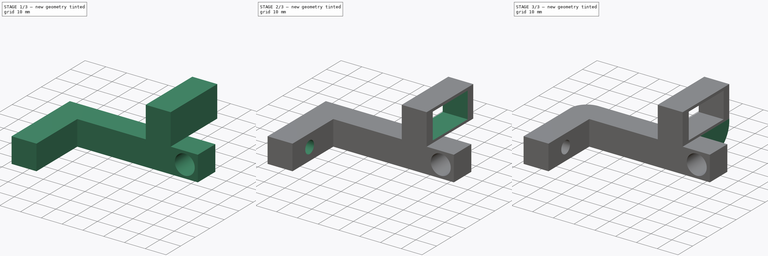
[diagram: build sequence overview — one tinted view per stage of 3, left to right]
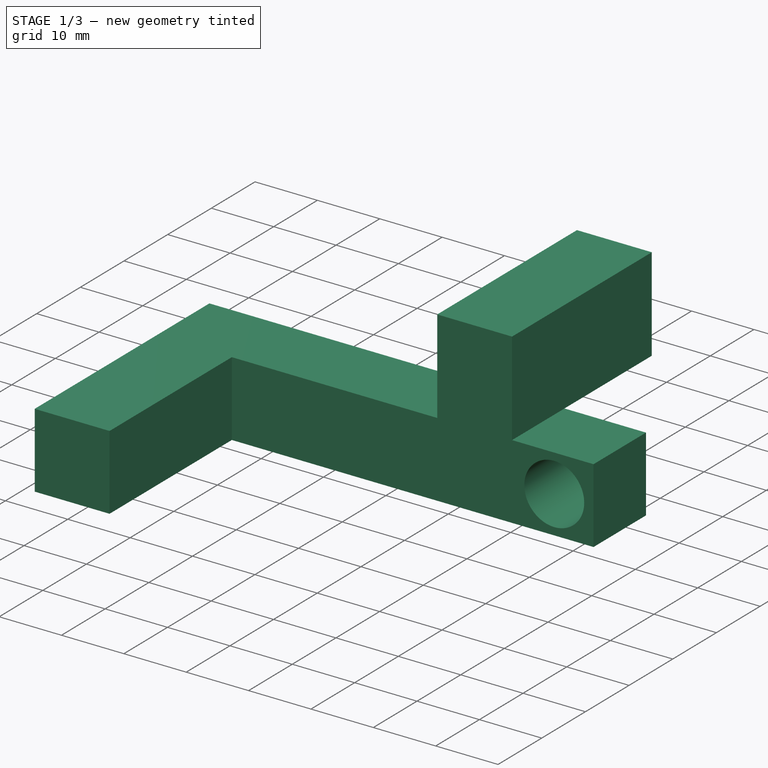
[diagram: stage 1 of 3 — iso view after this stage's code; geometry added in this stage tinted green]
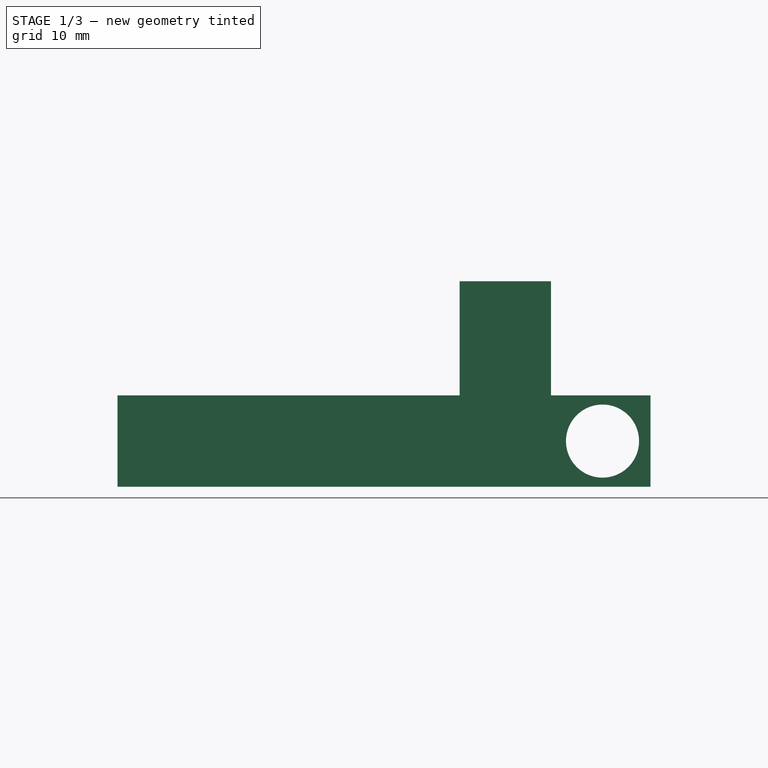
[diagram: stage 1 of 3 — front view after this stage's code; geometry added in this stage tinted green]
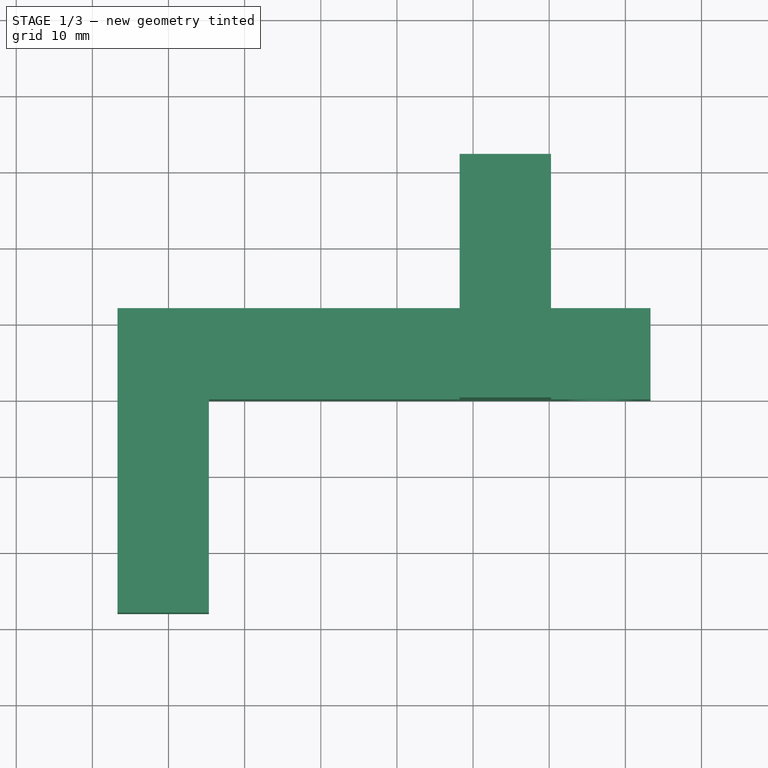
[diagram: stage 1 of 3 — top view after this stage's code; geometry added in this stage tinted green]
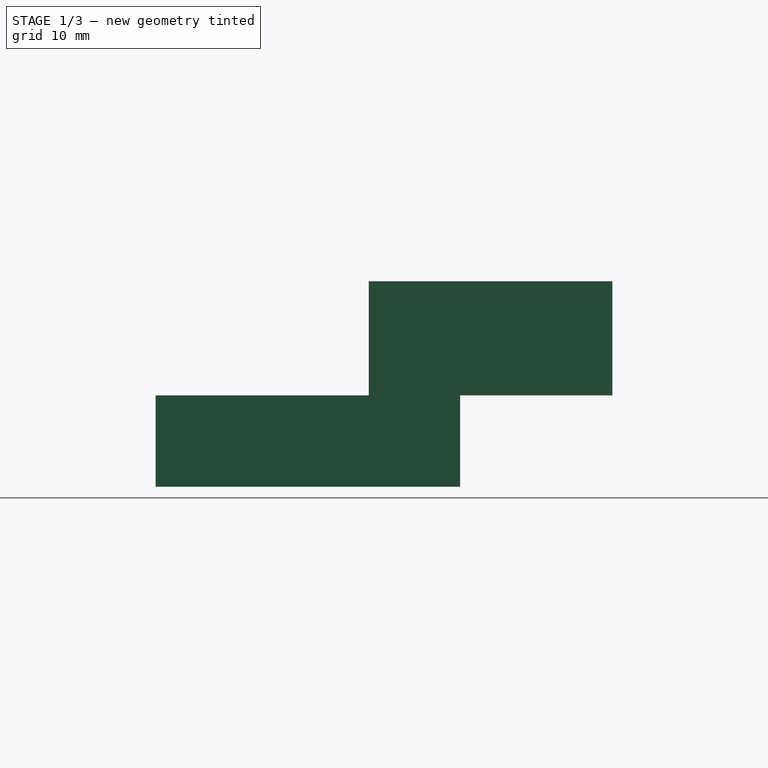
[diagram: stage 1 of 3 — right view after this stage's code; geometry added in this stage tinted green]
FCSTD DOCUMENT  (FreeCAD 0.18R4 (GitTag))
Label: keyboardSWPart3
License: All rights reserved
LicenseURL: http://en.wikipedia.org/wiki/All_rights_reserved
objects: Sketcher::SketchObject×6, PartDesign::Pad×3, PartDesign::Pocket×3, PartDesign::Fillet×2, PartDesign::Body×1
note: 21 computed .brp shape members not serialized (recipe doc carries the construction recipe); baked Part::Feature solids carry a one-line shape summary decoded from their .brp

FEATURE [Sketcher::SketchObject] Sketch
  MapMode = 5
  Support = -> [XY_Plane]
  sketch-geometry (7):
    g0: LineSegment StartX=0 StartY=0 StartZ=0 EndX=23.3008 EndY=0 EndZ=0
    g1: LineSegment StartX=23.3008 StartY=0 StartZ=0 EndX=23.3008 EndY=12 EndZ=0
    g2: LineSegment StartX=23.3008 StartY=12 StartZ=0 EndX=-46.6992 EndY=12 EndZ=0
    g3: LineSegment StartX=-46.6992 StartY=12 StartZ=0 EndX=-46.6992 EndY=-28 EndZ=0
    g4: LineSegment StartX=-46.6992 StartY=-28 StartZ=0 EndX=-34.6992 EndY=-28 EndZ=0
    g5: LineSegment StartX=-34.6992 StartY=-28 StartZ=0 EndX=-34.6992 EndY=0 EndZ=0
    g6: LineSegment StartX=-34.6992 StartY=0 StartZ=0 EndX=0 EndY=0 EndZ=0
  constraints (19):
    c: Coincident(g-1,g0)
    c: Horizontal(g0)
    c: Coincident(g0,g1)
    c: Vertical(g1)
    c: Coincident(g1,g2)
    c: Horizontal(g2)
    c: Coincident(g2,g3)
    c: Vertical(g3)
    c: Coincident(g3,g4)
    c: Horizontal(g4)
    c: Coincident(g4,g5)
    c: PointOnObject(g5,g-1)
    c: Vertical(g5)
    c: Coincident(g5,g6)
    c: Coincident(g6,g0)
    c: DistanceY(g1,g1) = 12
    c: DistanceX(g4,g4) = 12
    c: DistanceX(g2,g2) = 70
    c: DistanceY(g3,g3) = 40
FEATURE [PartDesign::Pad] Pad
  Length = 12
  Length2 = 100
  Profile = -> Sketch
  Type = 0
FEATURE [Sketcher::SketchObject] Sketch001
  MapMode = 5
  Placement = pos=(0,12,0) rot=(0,0.707107,0.707107;3.14159rad)
  Support = -> [Pad]
  sketch-geometry (1):
    g0: Circle CenterX=-17 CenterY=6 CenterZ=0 NormalX=0 NormalY=0 NormalZ=1 AngleXU=0 Radius=4.8
  constraints (3):
    c: Radius(g0) = 4.8
    c: DistanceY(g-1,g0) = 6
    c: DistanceX(g0,g-1) = 17
FEATURE [PartDesign::Pocket] Pocket
  BaseFeature = -> Pad
  Length = 13
  Length2 = 100
  Profile = -> Sketch001
  Type = 0
FEATURE [Sketcher::SketchObject] Sketch006
  MapMode = 5
  Placement = pos=(0,0,12) rot=(0,0,1;0rad)
  sketch-geometry (4):
    g0: LineSegment StartX=10.2329 StartY=0 StartZ=0 EndX=-1.76709 EndY=0 EndZ=0
    g1: LineSegment StartX=-1.76709 StartY=0 StartZ=0 EndX=-1.76709 EndY=32 EndZ=0
    g2: LineSegment StartX=-1.76709 StartY=32 StartZ=0 EndX=10.2329 EndY=32 EndZ=0
    g3: LineSegment StartX=10.2329 StartY=32 StartZ=0 EndX=10.2329 EndY=0 EndZ=0
  constraints (11):
    c: Coincident(g0,g1)
    c: Coincident(g1,g2)
    c: Coincident(g2,g3)
    c: Coincident(g3,g0)
    c: Horizontal(g0)
    c: Horizontal(g2)
    c: Vertical(g1)
    c: Vertical(g3)
    c: PointOnObject(g0,g-1)
    c: DistanceY(g3,g3) = 32
    c: DistanceX(g2,g2) = 12
FEATURE [PartDesign::Pad] Pad001
  BaseFeature = -> Pocket
  Length = 15
  Length2 = 100
  Profile = -> Sketch006
  Type = 0
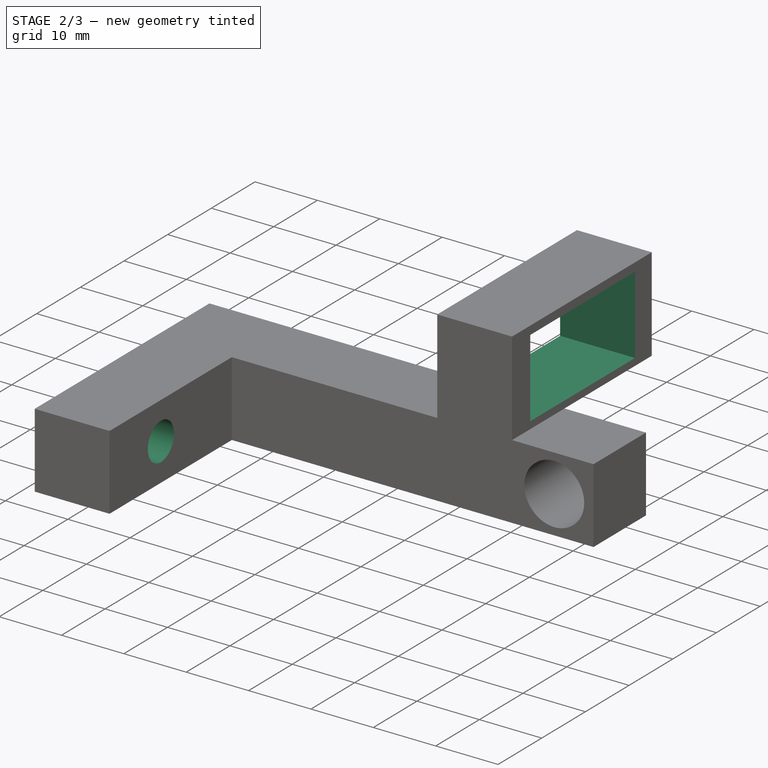
[diagram: stage 2 of 3 — iso view after this stage's code; geometry added in this stage tinted green]
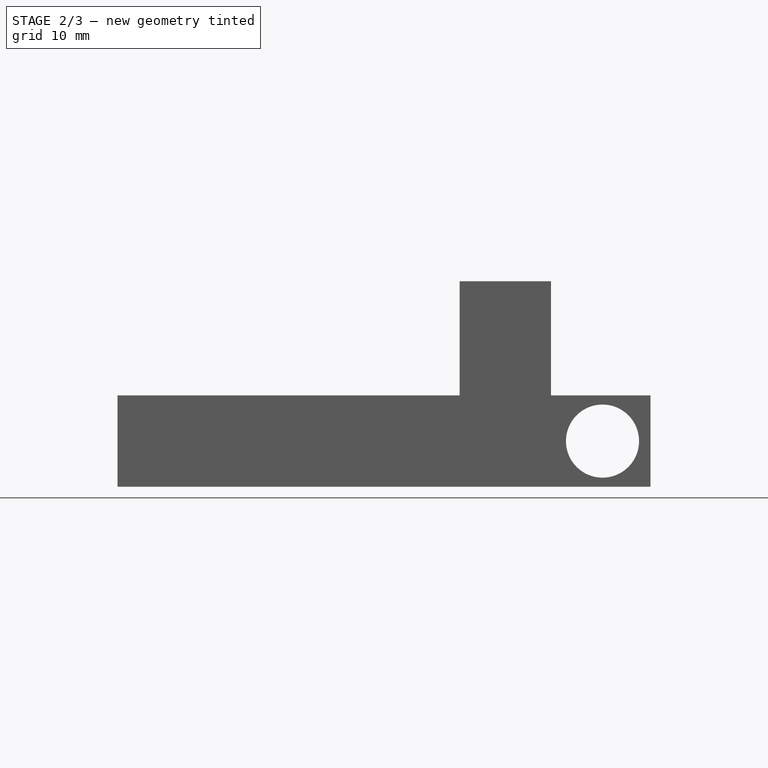
[diagram: stage 2 of 3 — front view after this stage's code; geometry added in this stage tinted green]
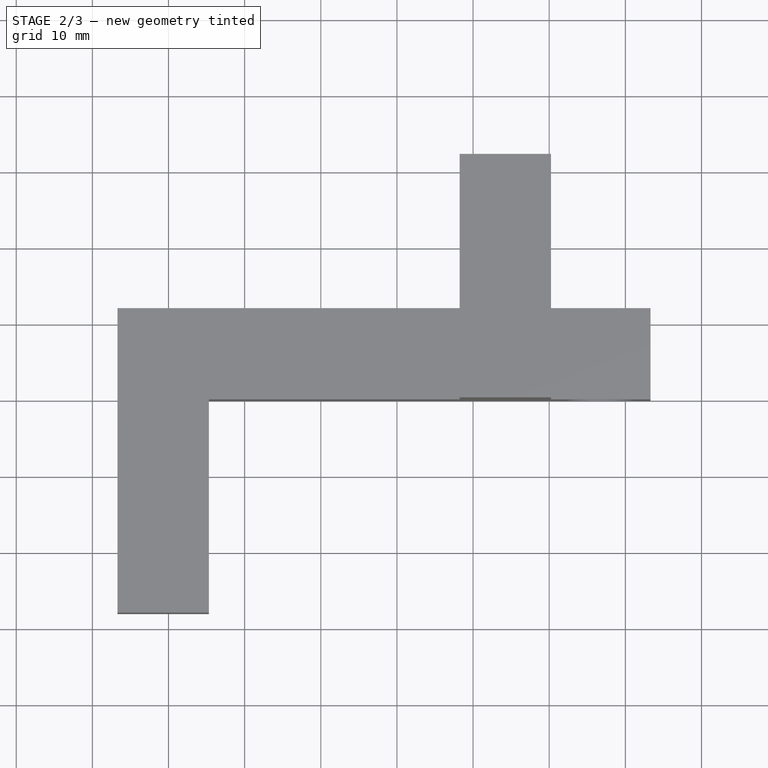
[diagram: stage 2 of 3 — top view after this stage's code; geometry added in this stage tinted green]
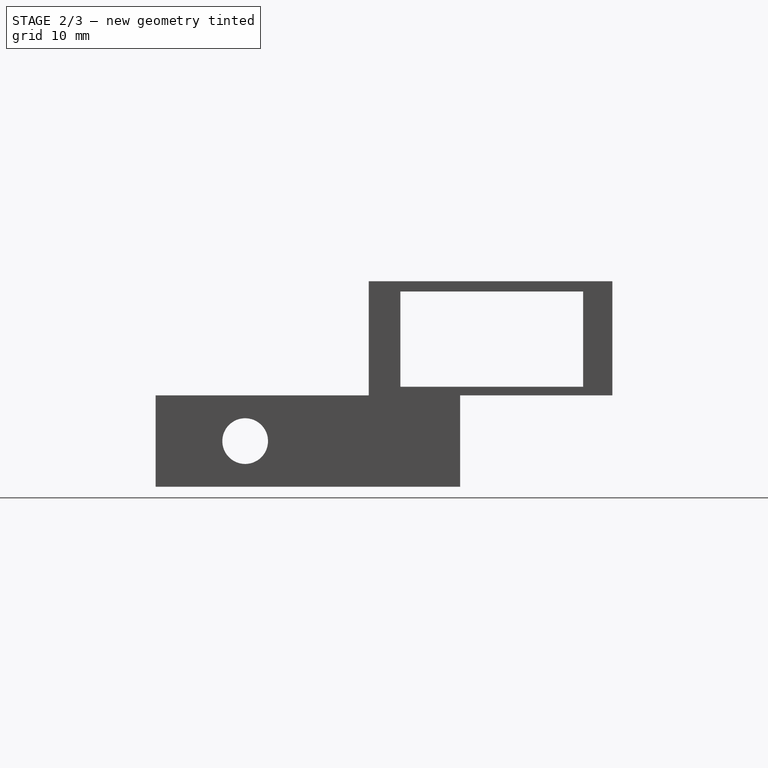
[diagram: stage 2 of 3 — right view after this stage's code; geometry added in this stage tinted green]
FEATURE [Sketcher::SketchObject] Sketch007
  MapMode = 5
  Placement = pos=(10.2329,0,0) rot=(0.57735,0.57735,0.57735;2.0944rad)
  Support = -> [Pad001]
  sketch-geometry (4):
    g0: LineSegment StartX=4.15885 StartY=25.6458 StartZ=0 EndX=28.1588 EndY=25.6458 EndZ=0
    g1: LineSegment StartX=28.1588 StartY=25.6458 StartZ=0 EndX=28.1588 EndY=13.1458 EndZ=0
    g2: LineSegment StartX=28.1588 StartY=13.1458 StartZ=0 EndX=4.15885 EndY=13.1458 EndZ=0
    g3: LineSegment StartX=4.15885 StartY=13.1458 StartZ=0 EndX=4.15885 EndY=25.6458 EndZ=0
  constraints (10):
    c: Coincident(g0,g1)
    c: Coincident(g1,g2)
    c: Coincident(g2,g3)
    c: Coincident(g3,g0)
    c: Horizontal(g0)
    c: Horizontal(g2)
    c: Vertical(g1)
    c: Vertical(g3)
    c: DistanceY(g1,g1) = 12.5
    c: DistanceX(g0,g0) = 24
FEATURE [PartDesign::Pocket] Pocket004
  BaseFeature = -> Pad001
  Length = 13
  Length2 = 100
  Profile = -> Sketch007
  Type = 0
FEATURE [Sketcher::SketchObject] Sketch008
  MapMode = 5
  Placement = pos=(-46.6992,0,0) rot=(0.57735,-0.57735,-0.57735;2.0944rad)
  Support = -> [Pocket004]
  sketch-geometry (1):
    g0: Circle CenterX=16.2342 CenterY=6 CenterZ=0 NormalX=0 NormalY=0 NormalZ=1 AngleXU=0 Radius=3
  constraints (2):
    c: Radius(g0) = 3
    c: DistanceY(g-1,g0) = 6
FEATURE [PartDesign::Pocket] Pocket005
  BaseFeature = -> Pocket004
  Length = 13
  Length2 = 100
  Profile = -> Sketch008
  Type = 0
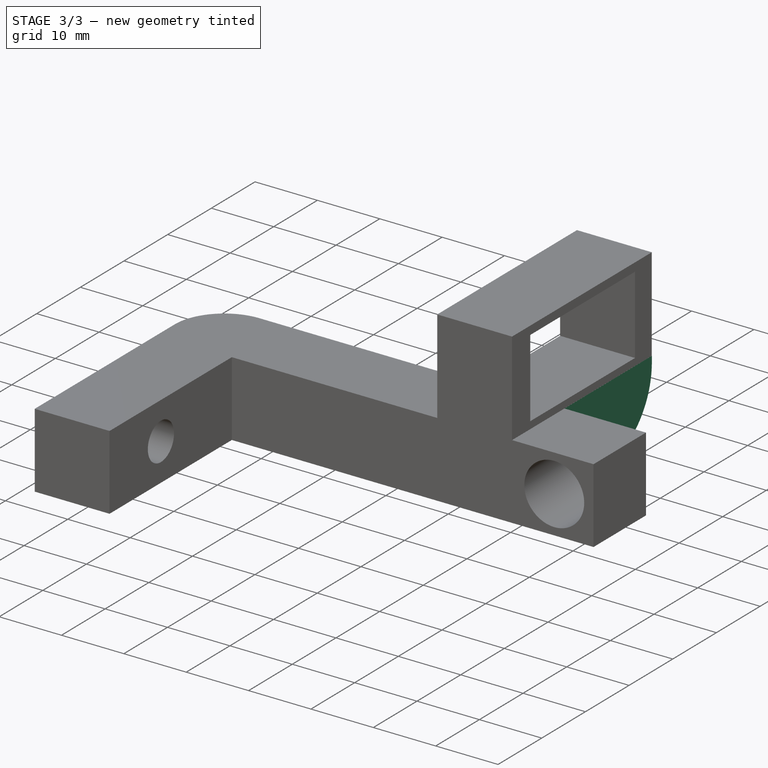
[diagram: stage 3 of 3 — iso view after this stage's code; geometry added in this stage tinted green]
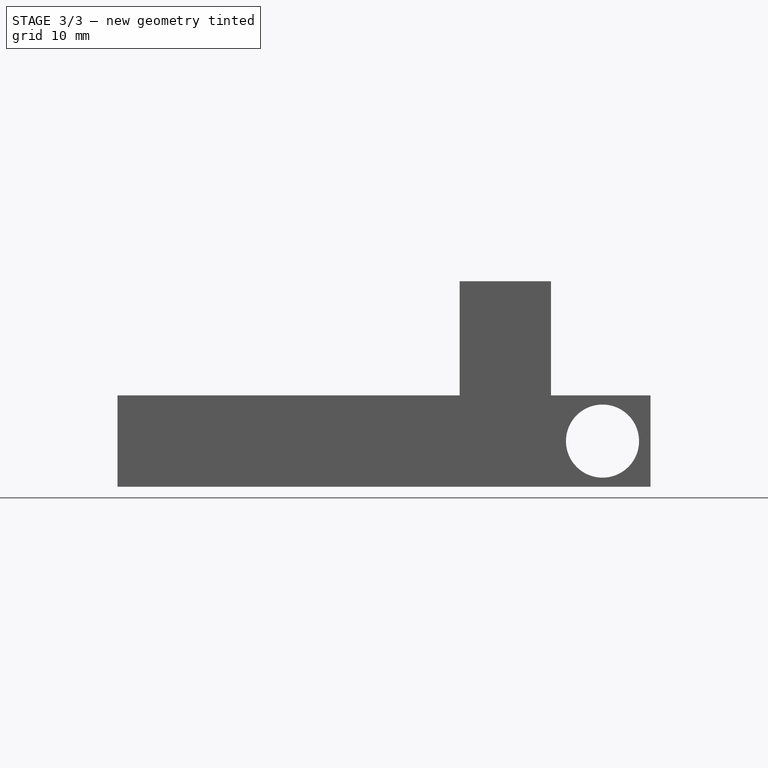
[diagram: stage 3 of 3 — front view after this stage's code; geometry added in this stage tinted green]
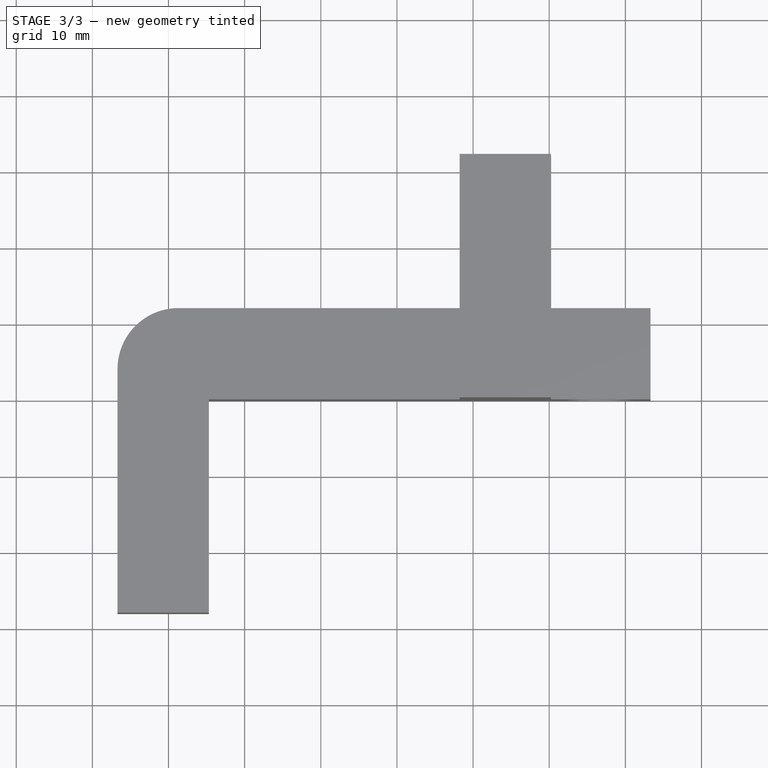
[diagram: stage 3 of 3 — top view after this stage's code; geometry added in this stage tinted green]
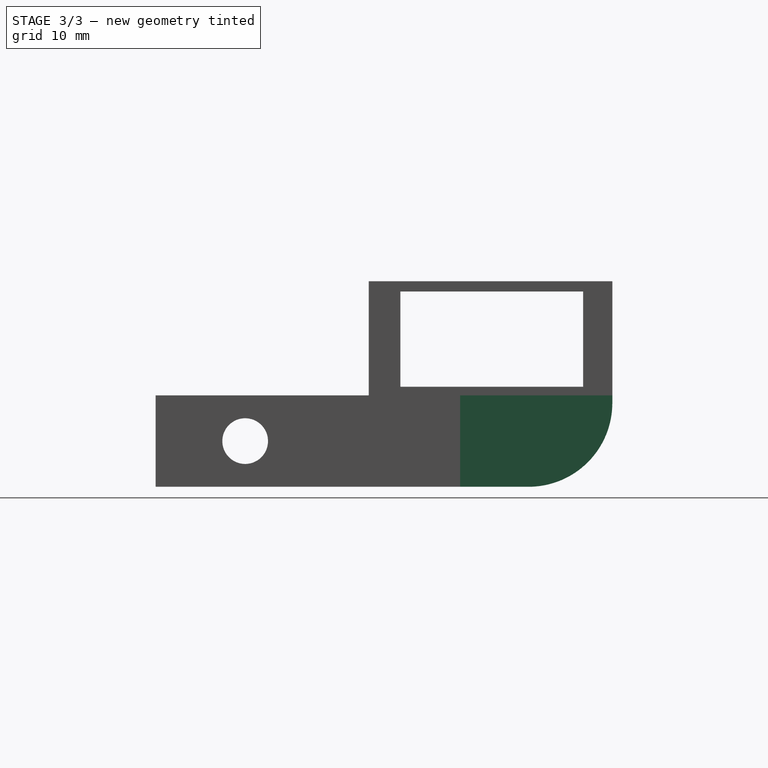
[diagram: stage 3 of 3 — right view after this stage's code; geometry added in this stage tinted green]
FEATURE [Sketcher::SketchObject] Sketch009
  MapMode = 5
  Placement = pos=(0,0,12) rot=(1,0,0;3.14159rad)
  Support = -> [Pocket005]
  sketch-geometry (4):
    g0: LineSegment StartX=-1.751 StartY=-12.0054 StartZ=0 EndX=10.2467 EndY=-12.0054 EndZ=0
    g1: LineSegment StartX=10.2467 StartY=-12.0054 StartZ=0 EndX=10.2467 EndY=-31.9903 EndZ=0
    g2: LineSegment StartX=10.2467 StartY=-31.9903 StartZ=0 EndX=-1.751 EndY=-31.9903 EndZ=0
    g3: LineSegment StartX=-1.751 StartY=-31.9903 StartZ=0 EndX=-1.751 EndY=-12.0054 EndZ=0
  constraints (8):
    c: Coincident(g0,g1)
    c: Coincident(g1,g2)
    c: Coincident(g2,g3)
    c: Coincident(g3,g0)
    c: Horizontal(g0)
    c: Horizontal(g2)
    c: Vertical(g1)
    c: Vertical(g3)
FEATURE [PartDesign::Pad] Pad002
  BaseFeature = -> Pocket005
  Length = 12
  Length2 = 100
  Profile = -> Sketch009
  Type = 0
FEATURE [PartDesign::Fillet] Fillet
  Base = -> Pad002 [Edge66]
  BaseFeature = -> Pad002
  Radius = 11
FEATURE [PartDesign::Fillet] Fillet001
  Base = -> Fillet [Edge37]
  BaseFeature = -> Fillet
  Radius = 8
FEATURE [PartDesign::Body] Body
  Group = -> [Sketch,Pad,Sketch001,Pocket,Sketch006,Pad001,Sketch007,Pocket004,Sketch008,Pocket005,Sketch009,Pad002,Fillet,Fillet001]
  Origin = -> Origin
  Tip = -> Fillet001
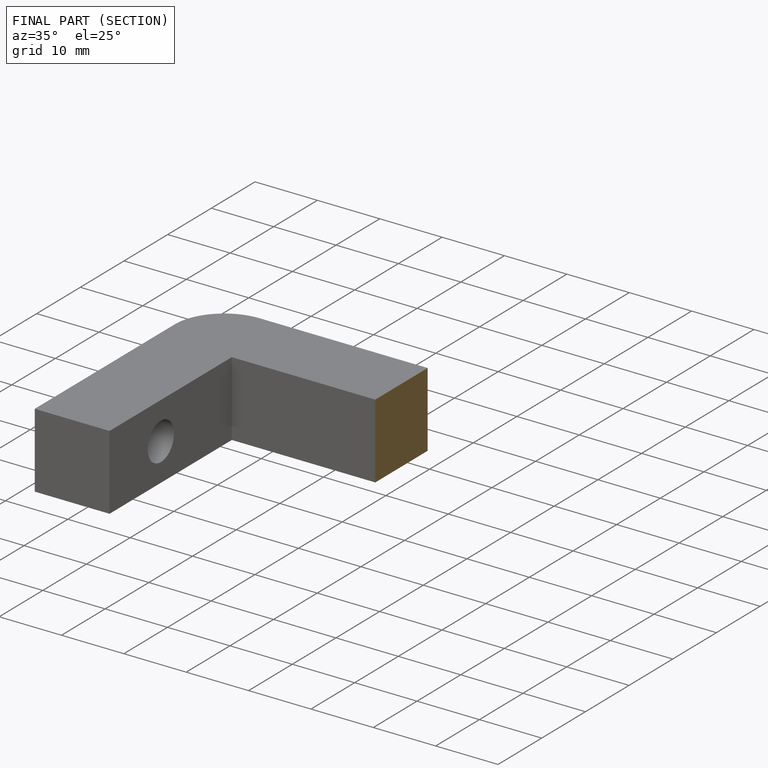
[diagram: finished part — half-section view (interior)]
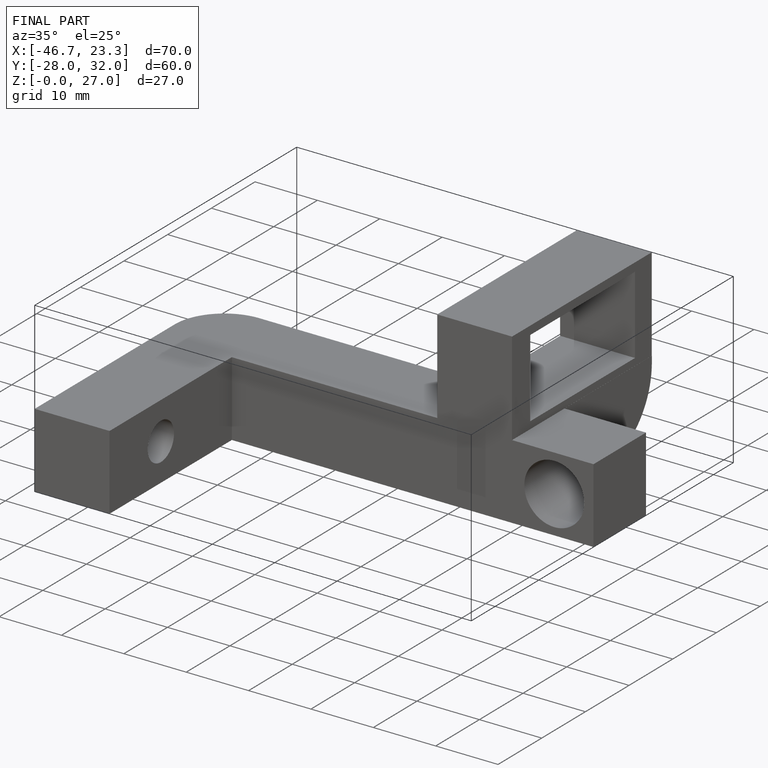
[diagram: finished part — iso view with bounding-box wireframe]
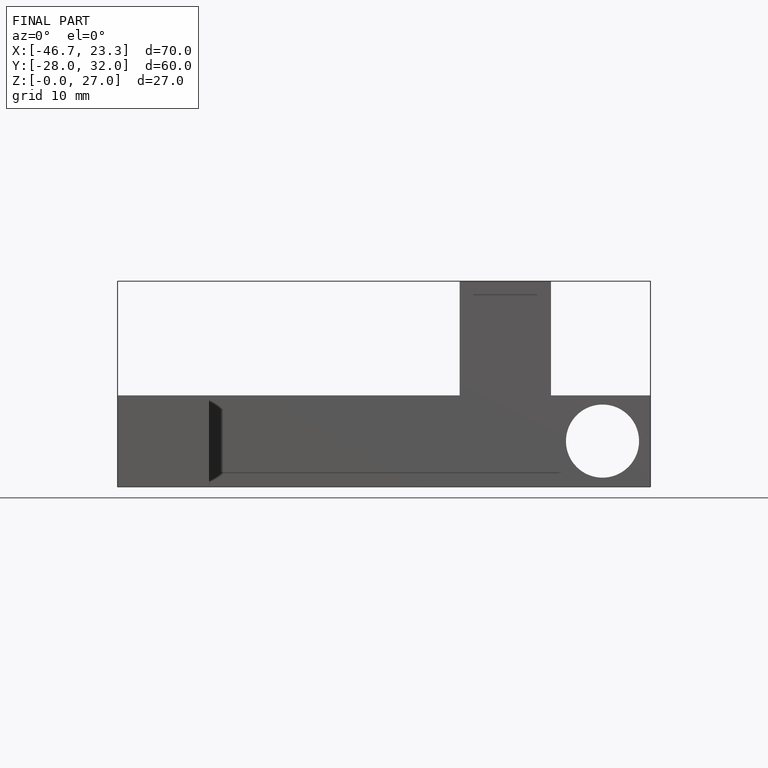
[diagram: finished part — front view with bounding-box wireframe]
